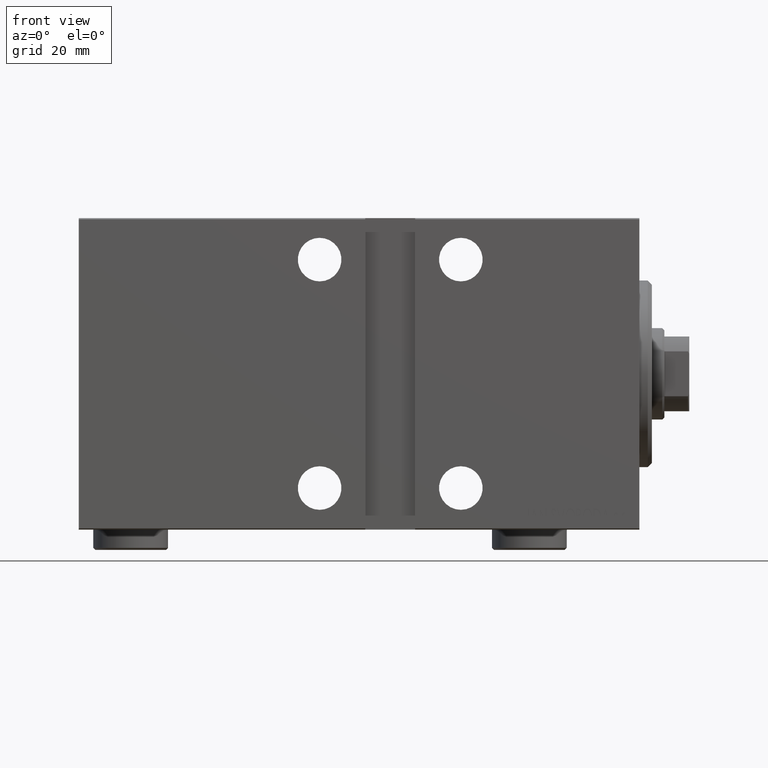
[diagram: clean part render]
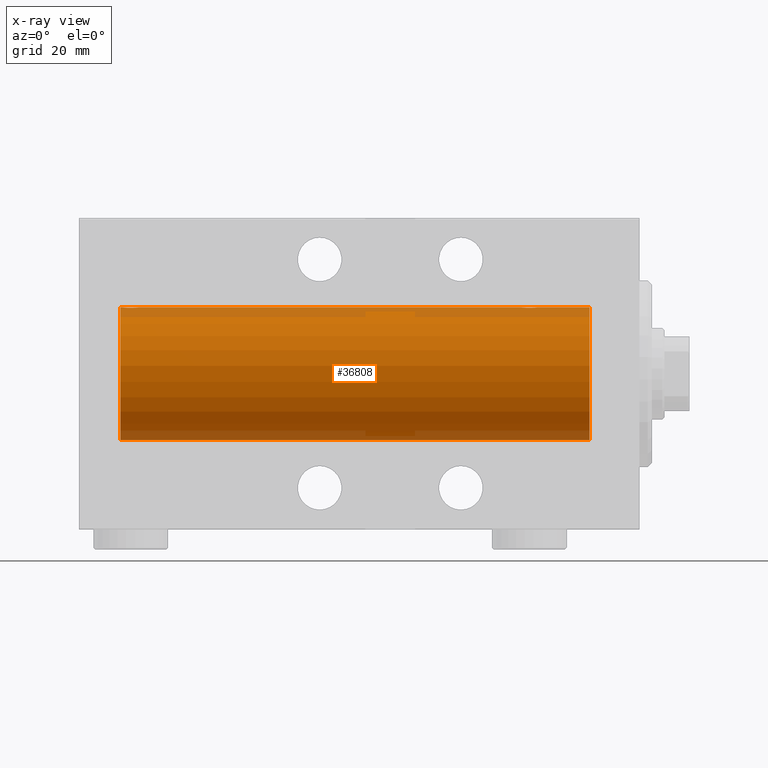
[diagram: x-ray — body ghosted, one internal face saturated and labeled with its STEP entity id]
A machine part, front view, then the same camera in x-ray: the body is ghosted and one INTERNAL B-rep face — a face not visible from any outside direction — is saturated and labeled: STEP entity #36808.
In plain terms, the highlighted cylindrical surface (partial cylindrical patch) has radius 16 mm, axis along (1, 0, -0).
Its self-contained STEP definition (entity closure, byte-faithful):
#216 = EDGE_CURVE ( 'NONE', #30572, #29522, #40471, .T. ) ;
#388 = CARTESIAN_POINT ( 'NONE',  ( 121.4968875296496407, 1.735145127817751209, 15.90580292899658410 ) ) ;
#623 = CARTESIAN_POINT ( 'NONE',  ( 120.7025007139496182, 0.8866640484200122296, 15.97587307151817804 ) ) ;
#844 = CARTESIAN_POINT ( 'NONE',  ( 121.9808690228989008, 1.935876924222082129, 15.88247600692092476 ) ) ;
#1285 = DIRECTION ( 'NONE',  ( -1.000000000000000000, -0.000000000000000000, -0.000000000000000000 ) ) ;
#1632 = CARTESIAN_POINT ( 'NONE',  ( 28.43611326682062668, 0.5181437283162075857, 15.99211983514074298 ) ) ;
#1649 = CARTESIAN_POINT ( 'NONE',  ( 124.4361132668206267, 0.5181437283162089180, 15.99211983514074120 ) ) ;
#1926 = EDGE_LOOP ( 'NONE', ( #31741, #40582, #3392, #10527, #40795, #43797, #6270, #34340 ) ) ;
#2108 = DIRECTION ( 'NONE',  ( 0.000000000000000000, 0.000000000000000000, 1.000000000000000000 ) ) ;
#2775 = VECTOR ( 'NONE', #41941, 1000.000000000000000 ) ;
#2891 = DIRECTION ( 'NONE',  ( -1.000000000000000000, -0.000000000000000000, -0.000000000000000000 ) ) ;
#3392 = ORIENTED_EDGE ( 'NONE', *, *, #44049, .T. ) ;
#5009 = CARTESIAN_POINT ( 'NONE',  ( 120.5130907516787744, 0.2632563459770846381, 15.99834873924246814 ) ) ;
#5171 = EDGE_CURVE ( 'NONE', #21385, #25659, #29122, .T. ) ;
#5228 = CARTESIAN_POINT ( 'NONE',  ( 122.7619146276225450, 1.999903730784159617, 15.87451999516785150 ) ) ;
#5432 = CARTESIAN_POINT ( 'NONE',  ( 25.61382242942729448, 1.797743958659264285, 15.89876304682111652 ) ) ;
#6270 = ORIENTED_EDGE ( 'NONE', *, *, #21779, .T. ) ;
#6555 = B_SPLINE_CURVE_WITH_KNOTS ( 'NONE', 3,
 ( #18913, #24371, #14522, #1649, #10717, #31554, #24814, #15329, #27973, #35950, #17674, #37839, #5228, #13837, #17442, #844, #27738, #41649, #388, #14069, #24597, #31329, #41871, #38515, #623, #7572, #7798, #5009, #21234, #34919 ),
 .UNSPECIFIED., .F., .F.,
 ( 4, 2, 2, 2, 2, 2, 2, 2, 2, 2, 2, 2, 2, 2, 4 ),
 ( 2.361026114253042579E-18, 0.0003911894522871198774, 0.0007823789045742373695, 0.001173568356861354970, 0.001564757809148472354, 0.002347136713722708205, 0.003129515618296944274, 0.003520705070584062308, 0.003911894522871181210, 0.004303083975158299677, 0.004694273427445417278, 0.005085462879732535746, 0.005476652332019653346, 0.005867841784306772682, 0.006259031236593891150 ),
 .UNSPECIFIED. ) ;
#6844 = CARTESIAN_POINT ( 'NONE',  ( 125.0000000000000000, 1.959434878635765131E-15, -16.00000000000000000 ) ) ;
#7572 = CARTESIAN_POINT ( 'NONE',  ( 120.6021627350110634, 0.6445079780200571040, 15.98747331501412461 ) ) ;
#7798 = CARTESIAN_POINT ( 'NONE',  ( 120.5643094707387348, 0.5198215460038757563, 15.99206840425679310 ) ) ;
#8475 = VERTEX_POINT ( 'NONE', #43511 ) ;
#8585 = CARTESIAN_POINT ( 'NONE',  ( 26.23748416992100729, 1.987008272775798279, 15.87616016863255552 ) ) ;
#10053 = EDGE_CURVE ( 'NONE', #29490, #15469, #21674, .T. ) ;
#10131 = CARTESIAN_POINT ( 'NONE',  ( 24.50000000000000355, 0.1305944228192302270, 15.99999999999999645 ) ) ;
#10286 = DIRECTION ( 'NONE',  ( -1.000000000000000000, 0.000000000000000000, 0.000000000000000000 ) ) ;
#10527 = ORIENTED_EDGE ( 'NONE', *, *, #28029, .T. ) ;
#10717 = CARTESIAN_POINT ( 'NONE',  ( 124.3975887005559571, 0.6452446332038143106, 15.98744362947834929 ) ) ;
#11955 = CARTESIAN_POINT ( 'NONE',  ( 27.72956111739784646, 1.598790766515156170, 15.92099550861380486 ) ) ;
#12393 = CARTESIAN_POINT ( 'NONE',  ( 25.49688752964960869, 1.735145127817749211, 15.90580292899657699 ) ) ;
#12843 = CARTESIAN_POINT ( 'NONE',  ( 28.49999999999999645, 1.437053578700646788E-17, 16.00000000000000000 ) ) ;
#13542 = VECTOR ( 'NONE', #44067, 1000.000000000000000 ) ;
#13837 = CARTESIAN_POINT ( 'NONE',  ( 122.3701469164950595, 2.000047931387145983, 15.87450182760079542 ) ) ;
#14069 = CARTESIAN_POINT ( 'NONE',  ( 121.2803234255772225, 1.590393755196009451, 15.92092783521424337 ) ) ;
#14522 = CARTESIAN_POINT ( 'NONE',  ( 124.4870052400841445, 0.2623312429553322778, 15.99836091803360105 ) ) ;
#14771 = CARTESIAN_POINT ( 'NONE',  ( 125.0000000000000000, 0.000000000000000000, 16.00000000000000000 ) ) ;
#15311 = CARTESIAN_POINT ( 'NONE',  ( 28.23568098498261136, 1.002241074716284208, 15.96895041604535770 ) ) ;
#15329 = CARTESIAN_POINT ( 'NONE',  ( 124.0905150485210271, 1.219564485341771753, 15.95382484008322699 ) ) ;
#15458 = EDGE_CURVE ( 'NONE', #25659, #29522, #37123, .T. ) ;
#15469 = VERTEX_POINT ( 'NONE', #20511 ) ;
#15765 = CARTESIAN_POINT ( 'NONE',  ( 28.29713414748219691, 0.8874076679346778462, 15.97583181162460697 ) ) ;
#16364 = DIRECTION ( 'NONE',  ( 0.000000000000000000, 0.000000000000000000, 1.000000000000000000 ) ) ;
#16824 = AXIS2_PLACEMENT_3D ( 'NONE', #32811, #29441, #2108 ) ;
#16870 = CARTESIAN_POINT ( 'NONE',  ( 24.51309075167874241, 0.2632563459770823622, 15.99834873924246459 ) ) ;
#17442 = CARTESIAN_POINT ( 'NONE',  ( 122.2374841699210322, 1.987008272775794726, 15.87616016863255552 ) ) ;
#17674 = CARTESIAN_POINT ( 'NONE',  ( 123.5065918155958116, 1.747750603376303502, 15.90457341008072412 ) ) ;
#18913 = CARTESIAN_POINT ( 'NONE',  ( 124.5000000000000142, 2.429868908945361185E-15, 16.00000000000000000 ) ) ;
#19045 = CARTESIAN_POINT ( 'NONE',  ( 125.0000000000000000, 0.000000000000000000, 0.000000000000000000 ) ) ;
#19268 = FACE_OUTER_BOUND ( 'NONE', #1926, .T. ) ;
#19999 = CARTESIAN_POINT ( 'NONE',  ( 24.56430947073870286, 0.5198215460038738689, 15.99206840425678955 ) ) ;
#20214 = CARTESIAN_POINT ( 'NONE',  ( 24.76517329325045225, 1.003662148334367066, 15.96885838080210362 ) ) ;
#20511 = CARTESIAN_POINT ( 'NONE',  ( 28.49999999999999645, 1.437053578700646788E-17, 16.00000000000000000 ) ) ;
#21234 = CARTESIAN_POINT ( 'NONE',  ( 120.5000000000000568, 0.1305944228192306711, 16.00000000000000355 ) ) ;
#21385 = VERTEX_POINT ( 'NONE', #31632 ) ;
#21674 = LINE ( 'NONE', #35354, #41332 ) ;
#21779 = EDGE_CURVE ( 'NONE', #8475, #30572, #39180, .T. ) ;
#23946 = DIRECTION ( 'NONE',  ( 0.000000000000000000, 0.000000000000000000, 1.000000000000000000 ) ) ;
#24371 = CARTESIAN_POINT ( 'NONE',  ( 124.4999999999999858, 0.1322838750249265283, 15.99999999999999289 ) ) ;
#24399 = CARTESIAN_POINT ( 'NONE',  ( 125.0000000000000000, 0.000000000000000000, 0.000000000000000000 ) ) ;
#24597 = CARTESIAN_POINT ( 'NONE',  ( 121.1792417517107054, 1.507649250492130166, 15.92908549642226745 ) ) ;
#24814 = CARTESIAN_POINT ( 'NONE',  ( 124.2356809849826220, 1.002241074716285096, 15.96895041604535770 ) ) ;
#25609 = CARTESIAN_POINT ( 'NONE',  ( 27.02531756459405443, 1.947280337074170031, 15.88137861827787489 ) ) ;
#25659 = VERTEX_POINT ( 'NONE', #36861 ) ;
#25708 = DIRECTION ( 'NONE',  ( -1.000000000000000000, -0.000000000000000000, -0.000000000000000000 ) ) ;
#25757 = CYLINDRICAL_SURFACE ( 'NONE', #36214, 16.00000000000000000 ) ;
#26050 = CARTESIAN_POINT ( 'NONE',  ( 26.76191462762255568, 1.999903730784164058, 15.87451999516786216 ) ) ;
#26483 = EDGE_CURVE ( 'NONE', #15469, #8475, #43015, .T. ) ;
#26502 = CARTESIAN_POINT ( 'NONE',  ( 28.49999999999999289, 0.1322838750249261675, 16.00000000000000355 ) ) ;
#26616 = CARTESIAN_POINT ( 'NONE',  ( 11.99999999999999645, 0.000000000000000000, 16.00000000000000000 ) ) ;
#26716 = CARTESIAN_POINT ( 'NONE',  ( 24.50000000000000000, -2.739674480787312950E-23, 16.00000000000000000 ) ) ;
#27157 = CARTESIAN_POINT ( 'NONE',  ( 24.60216273501104567, 0.6445079780200568820, 15.98747331501412106 ) ) ;
#27378 = CARTESIAN_POINT ( 'NONE',  ( 24.70250071394960401, 0.8866640484200128958, 15.97587307151817804 ) ) ;
#27738 = CARTESIAN_POINT ( 'NONE',  ( 121.8561303196699157, 1.898058445420892193, 15.88709929148890510 ) ) ;
#27973 = CARTESIAN_POINT ( 'NONE',  ( 124.0061071246824582, 1.322357532253821244, 15.94553003295877325 ) ) ;
#28029 = EDGE_CURVE ( 'NONE', #28388, #29490, #6555, .T. ) ;
#28076 = VECTOR ( 'NONE', #25708, 1000.000000000000000 ) ;
#28388 = VERTEX_POINT ( 'NONE', #35622 ) ;
#28970 = CARTESIAN_POINT ( 'NONE',  ( 28.09051504852098802, 1.219564485341771753, 15.95382484008323054 ) ) ;
#29122 = CIRCLE ( 'NONE', #39858, 16.00000000000000000 ) ;
#29421 = CARTESIAN_POINT ( 'NONE',  ( 24.99262839687571613, 1.321075116345887368, 15.94564302722882587 ) ) ;
#29441 = DIRECTION ( 'NONE',  ( -1.000000000000000000, 0.000000000000000000, 0.000000000000000000 ) ) ;
#29490 = VERTEX_POINT ( 'NONE', #30634 ) ;
#29522 = VERTEX_POINT ( 'NONE', #38913 ) ;
#29638 = CARTESIAN_POINT ( 'NONE',  ( 28.39758870055592510, 0.6452446332038155319, 15.98744362947834574 ) ) ;
#30572 = VERTEX_POINT ( 'NONE', #26616 ) ;
#30634 = CARTESIAN_POINT ( 'NONE',  ( 120.5000000000000142, -2.738767290746308786E-23, 16.00000000000000000 ) ) ;
#30717 = LINE ( 'NONE', #38999, #2775 ) ;
#31329 = CARTESIAN_POINT ( 'NONE',  ( 120.9926283968757303, 1.321075116345880707, 15.94564302722882942 ) ) ;
#31554 = CARTESIAN_POINT ( 'NONE',  ( 124.2971341474822111, 0.8874076679346765140, 15.97583181162461408 ) ) ;
#31632 = CARTESIAN_POINT ( 'NONE',  ( 125.0000000000000000, 0.000000000000000000, 16.00000000000000000 ) ) ;
#31741 = ORIENTED_EDGE ( 'NONE', *, *, #15458, .F. ) ;
#32337 = CARTESIAN_POINT ( 'NONE',  ( 28.48700524008412671, 0.2623312429553312786, 15.99836091803360105 ) ) ;
#32791 = CARTESIAN_POINT ( 'NONE',  ( 25.17924175171066636, 1.507649250492136606, 15.92908549642226745 ) ) ;
#32811 = CARTESIAN_POINT ( 'NONE',  ( 11.99999999999999645, 0.000000000000000000, 0.000000000000000000 ) ) ;
#34340 = ORIENTED_EDGE ( 'NONE', *, *, #216, .T. ) ;
#34919 = CARTESIAN_POINT ( 'NONE',  ( 120.5000000000000142, -2.738767290746308786E-23, 16.00000000000000000 ) ) ;
#35354 = CARTESIAN_POINT ( 'NONE',  ( 125.0000000000000000, 0.000000000000000000, 16.00000000000000000 ) ) ;
#35622 = CARTESIAN_POINT ( 'NONE',  ( 124.5000000000000142, 2.429868908945361185E-15, 16.00000000000000000 ) ) ;
#35934 = CARTESIAN_POINT ( 'NONE',  ( 25.98086902289887590, 1.935876924222084794, 15.88247600692093187 ) ) ;
#35950 = CARTESIAN_POINT ( 'NONE',  ( 123.7295611173978500, 1.598790766515149953, 15.92099550861380131 ) ) ;
#36154 = CARTESIAN_POINT ( 'NONE',  ( 25.85613031966986597, 1.898058445420892415, 15.88709929148890510 ) ) ;
#36214 = AXIS2_PLACEMENT_3D ( 'NONE', #19045, #2891, #16364 ) ;
#36808 = ADVANCED_FACE ( 'NONE', ( #19268 ), #25757, .F. ) ;
#36861 = CARTESIAN_POINT ( 'NONE',  ( 125.0000000000000000, 1.959434878635765131E-15, -16.00000000000000000 ) ) ;
#37123 = LINE ( 'NONE', #6844, #13542 ) ;
#37839 = CARTESIAN_POINT ( 'NONE',  ( 123.0253175645940757, 1.947280337074166923, 15.88137861827786423 ) ) ;
#38515 = CARTESIAN_POINT ( 'NONE',  ( 120.7651732932504700, 1.003662148334365289, 15.96885838080210362 ) ) ;
#38913 = CARTESIAN_POINT ( 'NONE',  ( 11.99999999999999645, 1.959434878635765131E-15, -16.00000000000000000 ) ) ;
#38999 = CARTESIAN_POINT ( 'NONE',  ( 125.0000000000000000, 0.000000000000000000, 16.00000000000000000 ) ) ;
#39180 = LINE ( 'NONE', #14771, #28076 ) ;
#39520 = CARTESIAN_POINT ( 'NONE',  ( 27.50659181559581867, 1.747750603376305722, 15.90457341008072412 ) ) ;
#39740 = CARTESIAN_POINT ( 'NONE',  ( 25.28032342557721890, 1.590393755196007231, 15.92092783521423982 ) ) ;
#39858 = AXIS2_PLACEMENT_3D ( 'NONE', #24399, #10286, #23946 ) ;
#40471 = CIRCLE ( 'NONE', #16824, 16.00000000000000000 ) ;
#40582 = ORIENTED_EDGE ( 'NONE', *, *, #5171, .F. ) ;
#40795 = ORIENTED_EDGE ( 'NONE', *, *, #10053, .T. ) ;
#41332 = VECTOR ( 'NONE', #1285, 1000.000000000000000 ) ;
#41649 = CARTESIAN_POINT ( 'NONE',  ( 121.6138224294273016, 1.797743958659263841, 15.89876304682112007 ) ) ;
#41871 = CARTESIAN_POINT ( 'NONE',  ( 120.9099847189987855, 1.220169175415118490, 15.95377581882983797 ) ) ;
#41941 = DIRECTION ( 'NONE',  ( -1.000000000000000000, -0.000000000000000000, -0.000000000000000000 ) ) ;
#42658 = CARTESIAN_POINT ( 'NONE',  ( 28.00610712468246888, 1.322357532253827461, 15.94553003295877680 ) ) ;
#43015 = B_SPLINE_CURVE_WITH_KNOTS ( 'NONE', 3,
 ( #12843, #26502, #32337, #1632, #29638, #15765, #15311, #28970, #42658, #11955, #39520, #25609, #26050, #43333, #8585, #35934, #36154, #5432, #12393, #39740, #32791, #29421, #43108, #20214, #27378, #27157, #19999, #16870, #10131, #26716 ),
 .UNSPECIFIED., .F., .F.,
 ( 4, 2, 2, 2, 2, 2, 2, 2, 2, 2, 2, 2, 2, 2, 4 ),
 ( 5.574780923044956637E-19, 0.0003911894522871173295, 0.0007823789045742341169, 0.001173568356861350850, 0.001564757809148467800, 0.002347136713722702134, 0.003129515618296936901, 0.003520705070584054068, 0.003911894522871172536, 0.004303083975158289269, 0.004694273427445406870, 0.005085462879732524470, 0.005476652332019642071, 0.005867841784306759671, 0.006259031236593876404 ),
 .UNSPECIFIED. ) ;
#43108 = CARTESIAN_POINT ( 'NONE',  ( 24.90998471899876421, 1.220169175415120710, 15.95377581882984330 ) ) ;
#43333 = CARTESIAN_POINT ( 'NONE',  ( 26.37014691649502041, 2.000047931387148648, 15.87450182760079898 ) ) ;
#43511 = CARTESIAN_POINT ( 'NONE',  ( 24.50000000000000000, -2.739674480787312950E-23, 16.00000000000000000 ) ) ;
#43797 = ORIENTED_EDGE ( 'NONE', *, *, #26483, .T. ) ;
#44049 = EDGE_CURVE ( 'NONE', #21385, #28388, #30717, .T. ) ;
#44067 = DIRECTION ( 'NONE',  ( -1.000000000000000000, -0.000000000000000000, -0.000000000000000000 ) ) ;